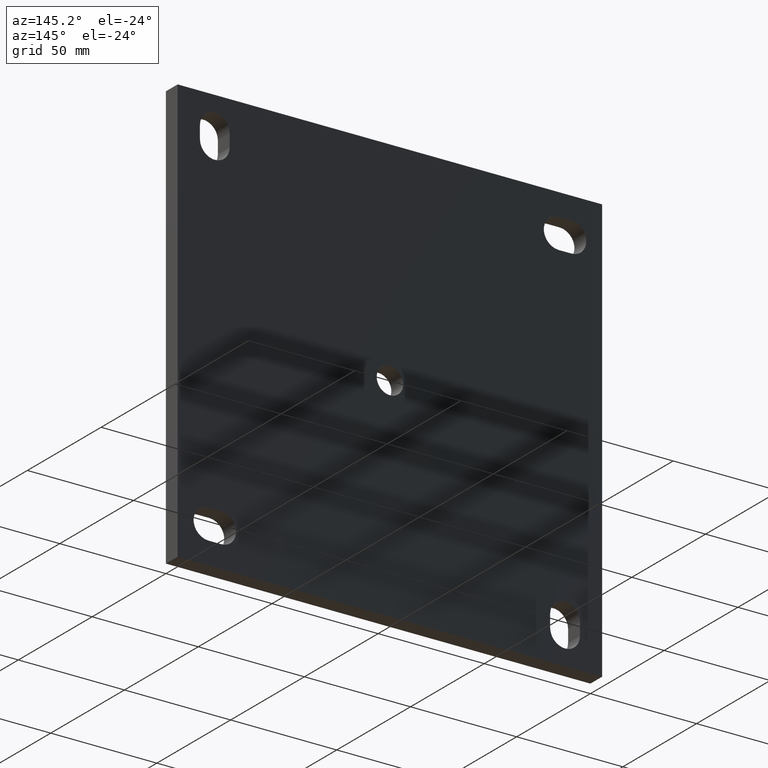
[diagram: clean part render]
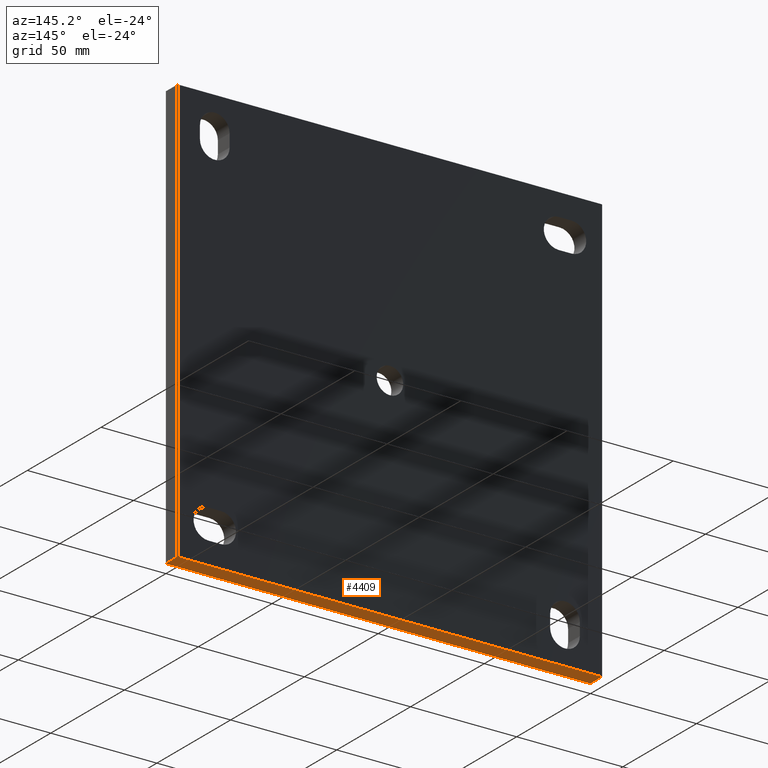
[diagram: same view with one face highlighted and labeled with its STEP entity id]
A machine part, auxiliary view. The second image highlights one B-rep face of the part: STEP entity #4409.
In plain terms, the highlighted planar face has unit normal (0, 0, 1).
Its self-contained STEP definition (entity closure, byte-faithful):
#40 = VECTOR ( 'NONE', #12912, 1000.000000000000000 ) ;
#111 = ORIENTED_EDGE ( 'NONE', *, *, #4523, .T. ) ;
#403 = VERTEX_POINT ( 'NONE', #2834 ) ;
#714 = CARTESIAN_POINT ( 'NONE',  ( 99.99999999999995737, 8.000000000000000000, -100.0000000000000000 ) ) ;
#723 = LINE ( 'NONE', #7234, #40 ) ;
#1084 = CARTESIAN_POINT ( 'NONE',  ( -100.0000000000000426, 8.000000000000000000, -100.0000000000000000 ) ) ;
#1810 = CARTESIAN_POINT ( 'NONE',  ( -100.0000000000000426, 0.000000000000000000, -100.0000000000000000 ) ) ;
#2490 = ORIENTED_EDGE ( 'NONE', *, *, #4217, .T. ) ;
#2834 = CARTESIAN_POINT ( 'NONE',  ( 99.99999999999995737, 0.000000000000000000, -100.0000000000000000 ) ) ;
#3612 = FACE_OUTER_BOUND ( 'NONE', #9725, .T. ) ;
#3920 = CARTESIAN_POINT ( 'NONE',  ( -100.0000000000000426, 0.000000000000000000, -100.0000000000000000 ) ) ;
#4049 = ORIENTED_EDGE ( 'NONE', *, *, #9037, .F. ) ;
#4195 = VERTEX_POINT ( 'NONE', #1810 ) ;
#4197 = DIRECTION ( 'NONE',  ( -0.000000000000000000, -1.000000000000000000, -0.000000000000000000 ) ) ;
#4217 = EDGE_CURVE ( 'NONE', #403, #4195, #11801, .T. ) ;
#4409 = ADVANCED_FACE ( 'NONE', ( #3612 ), #6780, .F. ) ;
#4523 = EDGE_CURVE ( 'NONE', #6372, #403, #10012, .T. ) ;
#5564 = VECTOR ( 'NONE', #7387, 1000.000000000000000 ) ;
#5778 = AXIS2_PLACEMENT_3D ( 'NONE', #12758, #9339, #9485 ) ;
#6372 = VERTEX_POINT ( 'NONE', #8557 ) ;
#6780 = PLANE ( 'NONE',  #5778 ) ;
#7171 = VECTOR ( 'NONE', #4197, 1000.000000000000000 ) ;
#7234 = CARTESIAN_POINT ( 'NONE',  ( -100.0000000000000426, 8.000000000000000000, -100.0000000000000000 ) ) ;
#7387 = DIRECTION ( 'NONE',  ( -1.000000000000000000, -0.000000000000000000, -0.000000000000000000 ) ) ;
#7974 = EDGE_CURVE ( 'NONE', #12013, #4195, #14457, .T. ) ;
#8235 = ORIENTED_EDGE ( 'NONE', *, *, #7974, .F. ) ;
#8557 = CARTESIAN_POINT ( 'NONE',  ( 99.99999999999995737, 8.000000000000000000, -100.0000000000000000 ) ) ;
#8861 = CARTESIAN_POINT ( 'NONE',  ( -100.0000000000000426, 8.000000000000000000, -100.0000000000000000 ) ) ;
#9037 = EDGE_CURVE ( 'NONE', #6372, #12013, #723, .T. ) ;
#9300 = VECTOR ( 'NONE', #12434, 1000.000000000000000 ) ;
#9339 = DIRECTION ( 'NONE',  ( 0.000000000000000000, 0.000000000000000000, 1.000000000000000000 ) ) ;
#9485 = DIRECTION ( 'NONE',  ( 1.000000000000000000, 0.000000000000000000, -0.000000000000000000 ) ) ;
#9725 = EDGE_LOOP ( 'NONE', ( #2490, #8235, #4049, #111 ) ) ;
#10012 = LINE ( 'NONE', #714, #9300 ) ;
#11801 = LINE ( 'NONE', #3920, #5564 ) ;
#12013 = VERTEX_POINT ( 'NONE', #1084 ) ;
#12434 = DIRECTION ( 'NONE',  ( -0.000000000000000000, -1.000000000000000000, -0.000000000000000000 ) ) ;
#12758 = CARTESIAN_POINT ( 'NONE',  ( -100.0000000000000426, 8.000000000000000000, -100.0000000000000000 ) ) ;
#12912 = DIRECTION ( 'NONE',  ( -1.000000000000000000, -0.000000000000000000, -0.000000000000000000 ) ) ;
#14457 = LINE ( 'NONE', #8861, #7171 ) ;